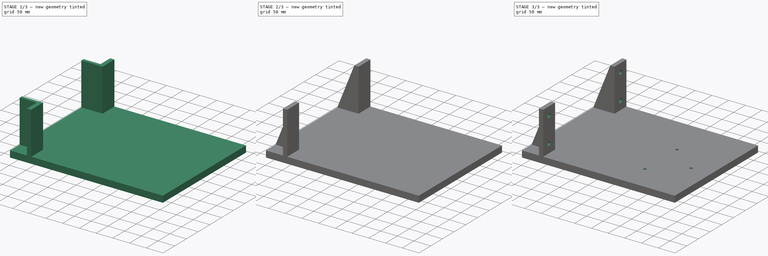
[diagram: build sequence overview — one tinted view per stage of 3, left to right]
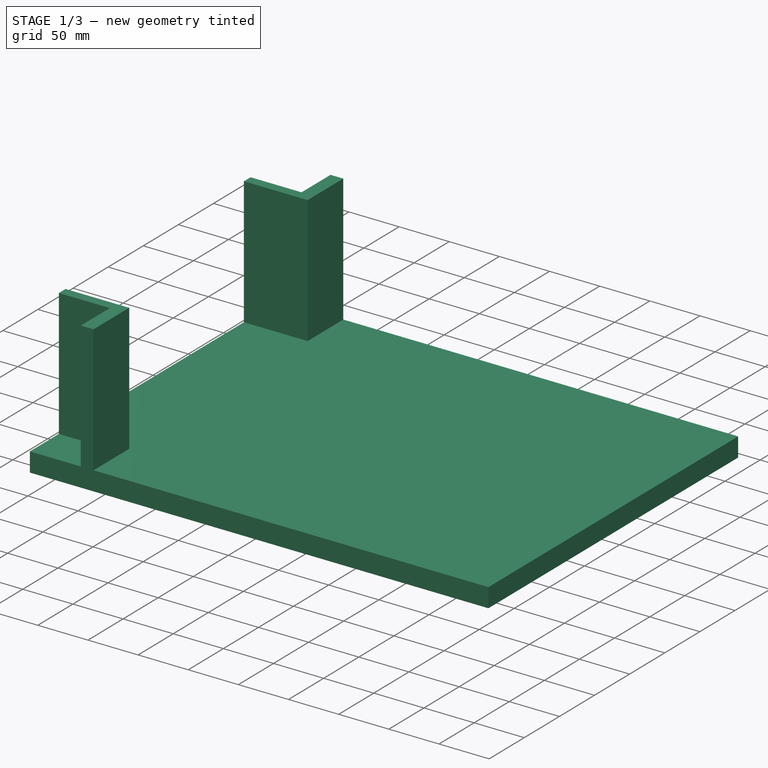
[diagram: stage 1 of 3 — iso view after this stage's code; geometry added in this stage tinted green]
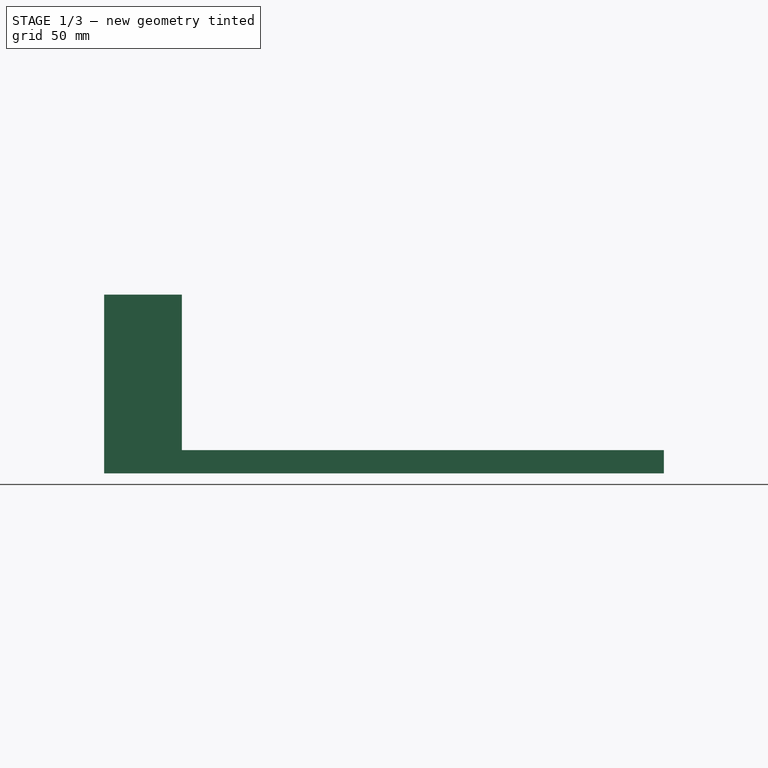
[diagram: stage 1 of 3 — front view after this stage's code; geometry added in this stage tinted green]
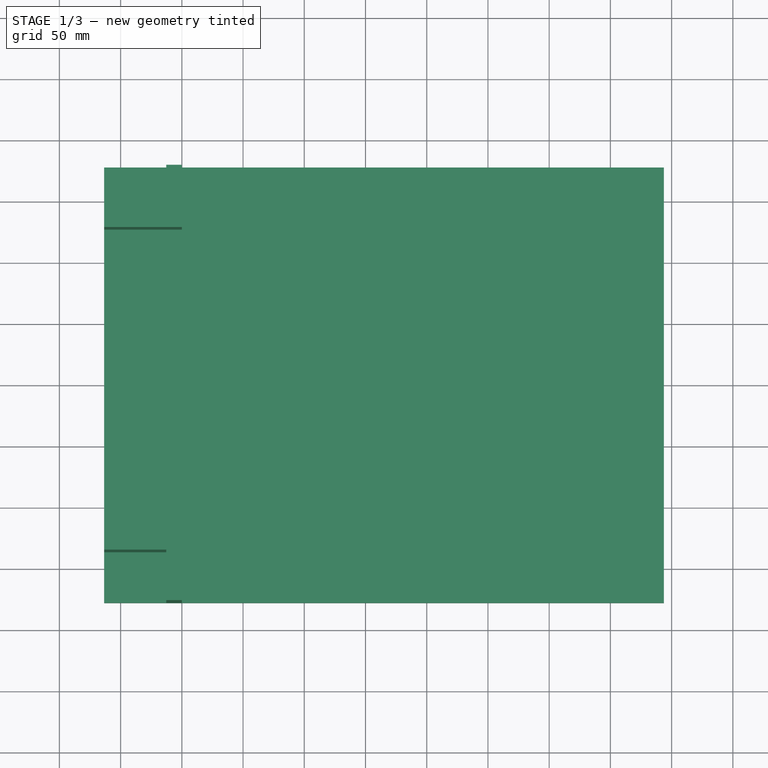
[diagram: stage 1 of 3 — top view after this stage's code; geometry added in this stage tinted green]
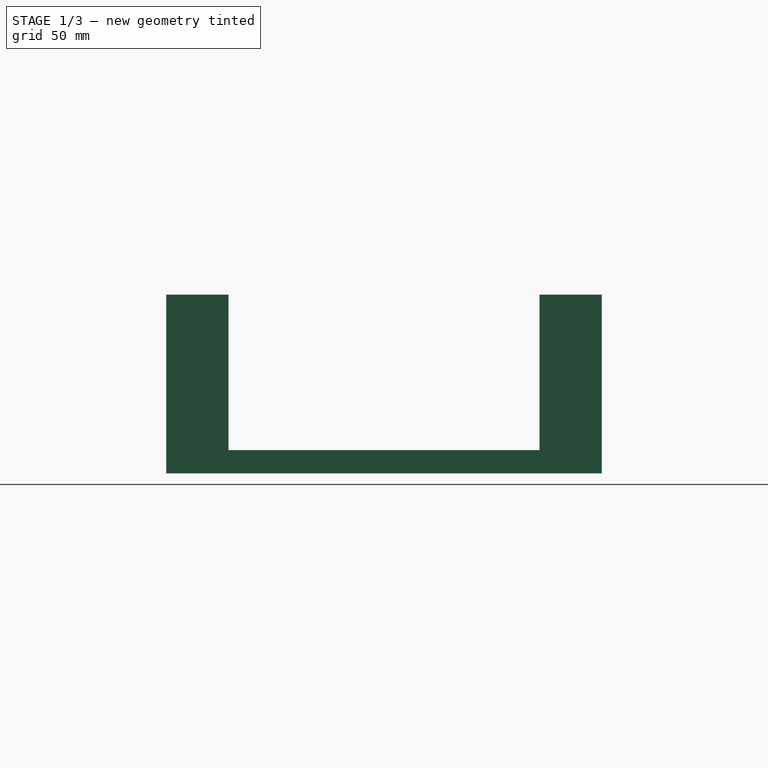
[diagram: stage 1 of 3 — right view after this stage's code; geometry added in this stage tinted green]
FCSTD DOCUMENT  (FreeCAD 0.19R23578 (Git))
Label: base_plate
License: All rights reserved
LicenseURL: http://en.wikipedia.org/wiki/All_rights_reserved
objects: Sketcher::SketchObject×5, PartDesign::Pocket×3, PartDesign::Pad×2, PartDesign::CoordinateSystem×2, PartDesign::Body×1, App::Part×1
note: 18 computed .brp shape members not serialized (recipe doc carries the construction recipe); baked Part::Feature solids carry a one-line shape summary decoded from their .brp

FEATURE [Sketcher::SketchObject] Sketch018
  MapMode = 5
  Support = -> [XY_Plane021]
  sketch-geometry (4):
    g0: LineSegment StartX=-63.5 StartY=177.8 StartZ=0 EndX=393.7 EndY=177.8 EndZ=0
    g1: LineSegment StartX=393.7 StartY=177.8 StartZ=0 EndX=393.7 EndY=-177.8 EndZ=0
    g2: LineSegment StartX=393.7 StartY=-177.8 StartZ=0 EndX=-63.5 EndY=-177.8 EndZ=0
    g3: LineSegment StartX=-63.5 StartY=-177.8 StartZ=0 EndX=-63.5 EndY=177.8 EndZ=0
  constraints (11):
    c: Coincident(g0,g1)
    c: Coincident(g1,g2)
    c: Coincident(g2,g3)
    c: Coincident(g3,g0)
    c: Horizontal(g0)
    c: Horizontal(g2)
    c: Vertical(g1)
    c: DistanceY(g-1,g0) = 177.8
    c: DistanceX(g0,g0) = 457.2
    c: DistanceX(g0,g-1) = 63.5
    c: Symmetric(g0,g2,g-1)
FEATURE [PartDesign::Pad] Pad008
  AllowMultiFace = false
  Direction = (1,1,1)
  Length = 19.05
  Length2 = 100
  Profile = -> Sketch018
  Reversed = true
  Type = 0
FEATURE [Sketcher::SketchObject] Sketch019
  MapMode = 5
  Support = -> [XY_Plane021]
  sketch-geometry (12):
    g0: LineSegment StartX=0 StartY=-127 StartZ=0 EndX=0 EndY=-177.8 EndZ=0
    g1: LineSegment StartX=0 StartY=-177.8 StartZ=0 EndX=-12.7 EndY=-177.8 EndZ=0
    g2: LineSegment StartX=-12.7 StartY=-177.8 StartZ=0 EndX=-12.7 EndY=-136.525 EndZ=0
    g3: LineSegment StartX=-63.5 StartY=-127 StartZ=0 EndX=-63.5 EndY=-136.525 EndZ=0
    g4: LineSegment StartX=-63.5 StartY=-136.525 StartZ=0 EndX=-12.7 EndY=-136.525 EndZ=0
    g5: LineSegment StartX=-63.5 StartY=-127 StartZ=0 EndX=0 EndY=-127 EndZ=0
    g6: LineSegment StartX=-12.7 StartY=136.525 StartZ=0 EndX=-63.5 EndY=136.525 EndZ=0
    g7: LineSegment StartX=-63.5 StartY=136.525 StartZ=0 EndX=-63.5 EndY=127 EndZ=0
    g8: LineSegment StartX=-63.5 StartY=127 StartZ=0 EndX=0 EndY=127 EndZ=0
    g9: LineSegment StartX=0 StartY=127 StartZ=0 EndX=0 EndY=177.8 EndZ=0
    g10: LineSegment StartX=0 StartY=177.8 StartZ=0 EndX=-12.7 EndY=177.8 EndZ=0
    g11: LineSegment StartX=-12.7 StartY=177.8 StartZ=0 EndX=-12.7 EndY=136.525 EndZ=0
  constraints (36):
    c: Coincident(g0,g1)
    c: Coincident(g1,g2)
    c: Horizontal(g1)
    c: Vertical(g0)
    c: Vertical(g2)
    c: Coincident(g3,g4)
    c: Horizontal(g4)
    c: Vertical(g3)
    c: Coincident(g2,g4)
    c: Coincident(g5,g3)
    c: Coincident(g5,g0)
    c: Horizontal(g5)
    c: DistanceY(g0,g-1) = 177.8
    c: DistanceX(g5,g5) = 63.5
    c: DistanceY(g3,g3) = 9.525
    c: PointOnObject(g0,g-2)
    c: DistanceY(g0,g0) = 50.8
    c: DistanceX(g1,g1) = 12.7
    c: Horizontal(g6)
    c: Coincident(g6,g7)
    c: Coincident(g7,g8)
    c: Coincident(g8,g9)
    c: Coincident(g9,g10)
    c: Coincident(g10,g11)
    c: Coincident(g11,g6)
    c: Vertical(g11)
    c: Vertical(g9)
    c: Vertical(g7)
    c: Horizontal(g10)
    c: Horizontal(g8)
    c: PointOnObject(g8,g-2)
    c: DistanceX(g10,g10) = 12.7
    c: DistanceX(g8,g8) = 63.5
    c: DistanceY(g9,g9) = 50.8
    c: DistanceY(g7,g7) = 9.525
    c: DistanceY(g-1,g9) = 177.8
FEATURE [PartDesign::Pad] Pad009
  AllowMultiFace = false
  BaseFeature = -> Pad008
  Direction = (1,1,1)
  Length = 127
  Length2 = 100
  Profile = -> Sketch019
  Type = 0
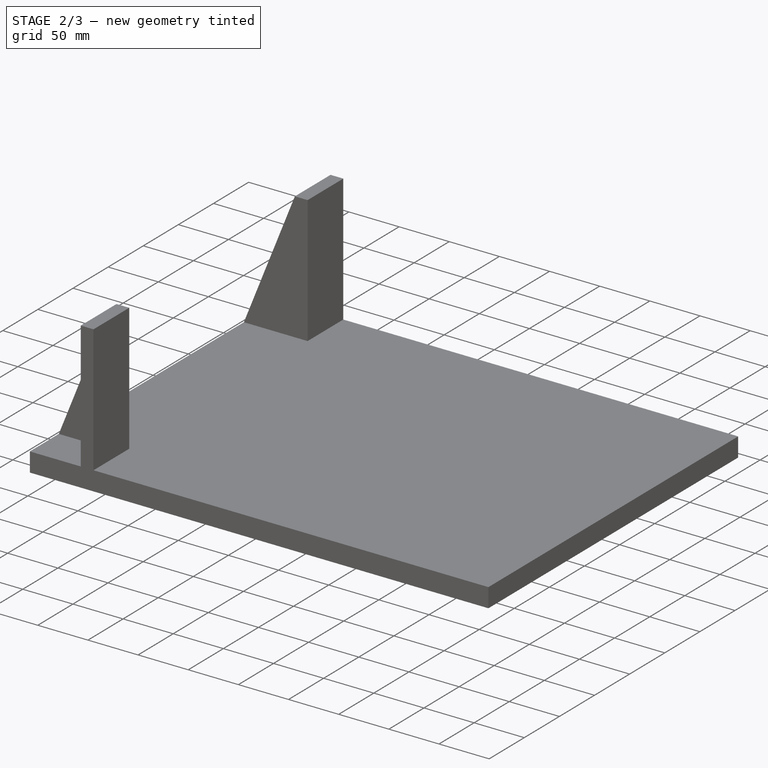
[diagram: stage 2 of 3 — iso view after this stage's code; geometry added in this stage tinted green]
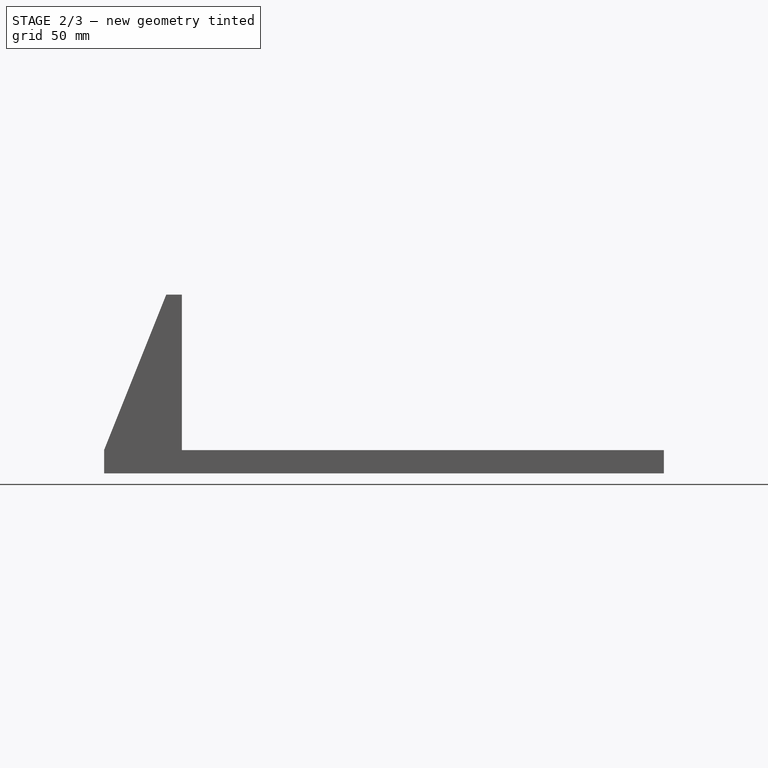
[diagram: stage 2 of 3 — front view after this stage's code; geometry added in this stage tinted green]
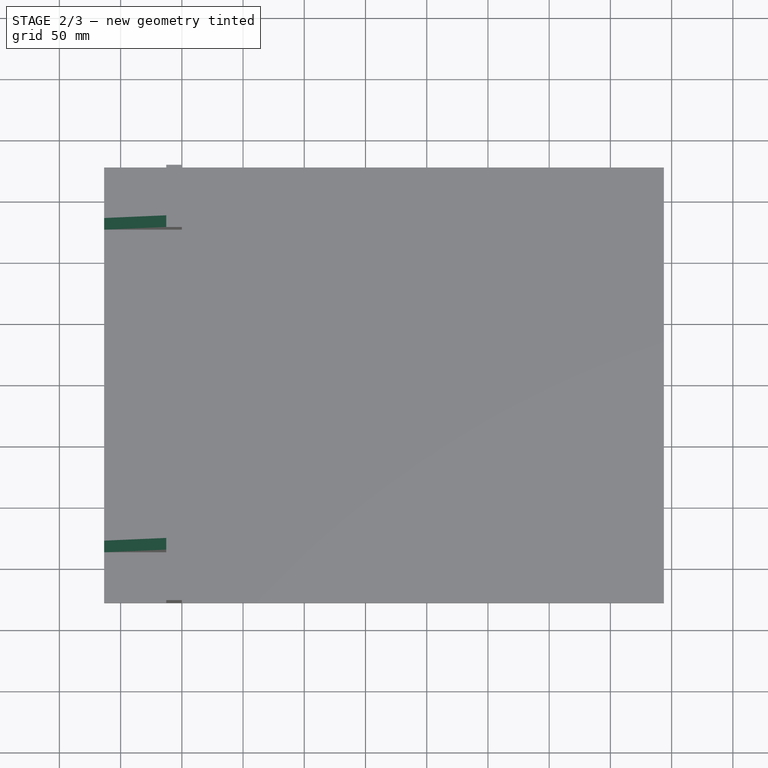
[diagram: stage 2 of 3 — top view after this stage's code; geometry added in this stage tinted green]
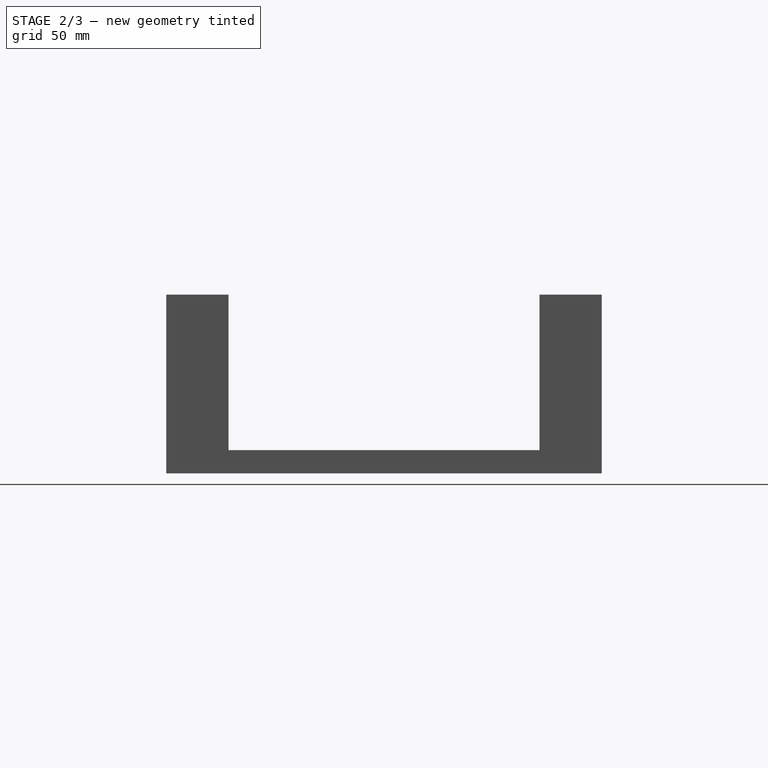
[diagram: stage 2 of 3 — right view after this stage's code; geometry added in this stage tinted green]
FEATURE [Sketcher::SketchObject] Sketch020
  MapMode = 5
  Placement = pos=(0,0,0) rot=(1,0,0;1.5708rad)
  Support = -> [XZ_Plane021]
  sketch-geometry (3):
    g0: LineSegment StartX=-63.5 StartY=0 StartZ=0 EndX=-12.7 EndY=127 EndZ=0
    g1: LineSegment StartX=-12.7 StartY=127 StartZ=0 EndX=-63.5 EndY=127 EndZ=0
    g2: LineSegment StartX=-63.5 StartY=127 StartZ=0 EndX=-63.5 EndY=0 EndZ=0
  constraints (9):
    c: Coincident(g0,g1)
    c: Horizontal(g1)
    c: Coincident(g1,g2)
    c: Coincident(g2,g0)
    c: Vertical(g2)
    c: PointOnObject(g0,g-1)
    c: DistanceY(g2,g2) = 127
    c: DistanceX(g0,g-1) = 12.7
    c: DistanceX(g0,g-1) = 63.5
FEATURE [PartDesign::Pocket] Pocket010
  AllowMultiFace = false
  BaseFeature = -> Pad009
  Length = 5
  Length2 = 100
  Midplane = true
  Profile = -> Sketch020
  Type = 1
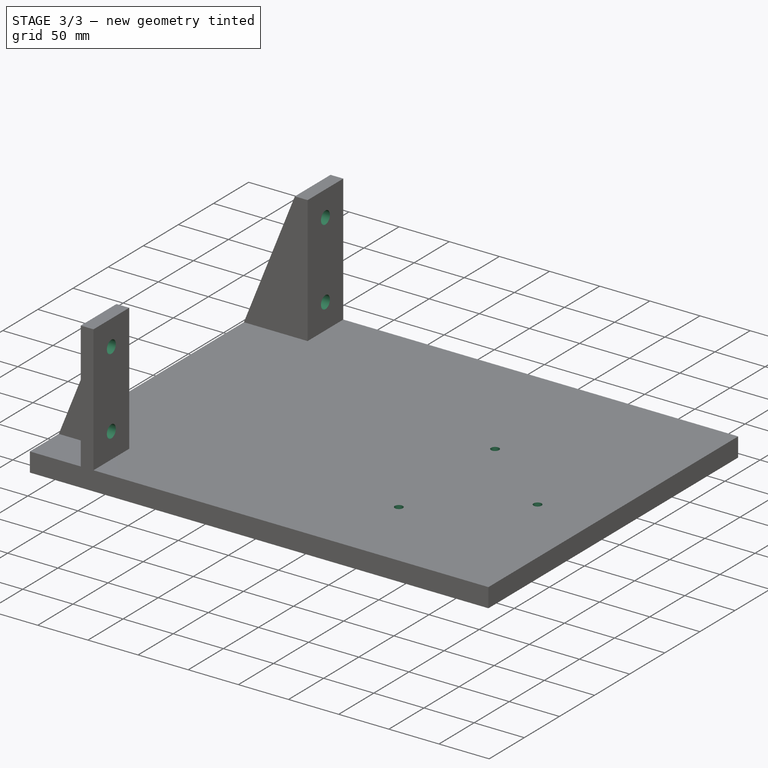
[diagram: stage 3 of 3 — iso view after this stage's code; geometry added in this stage tinted green]
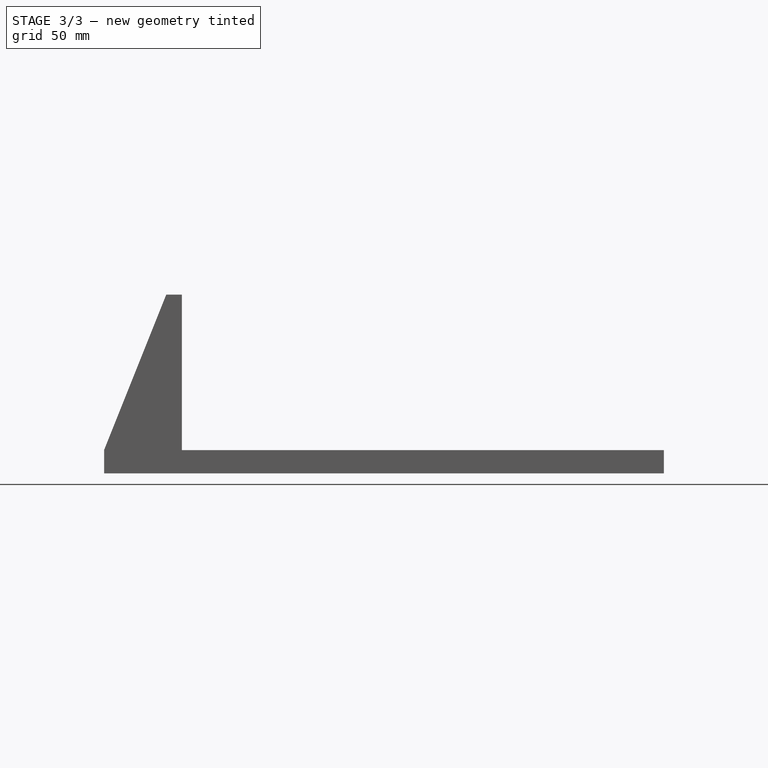
[diagram: stage 3 of 3 — front view after this stage's code; geometry added in this stage tinted green]
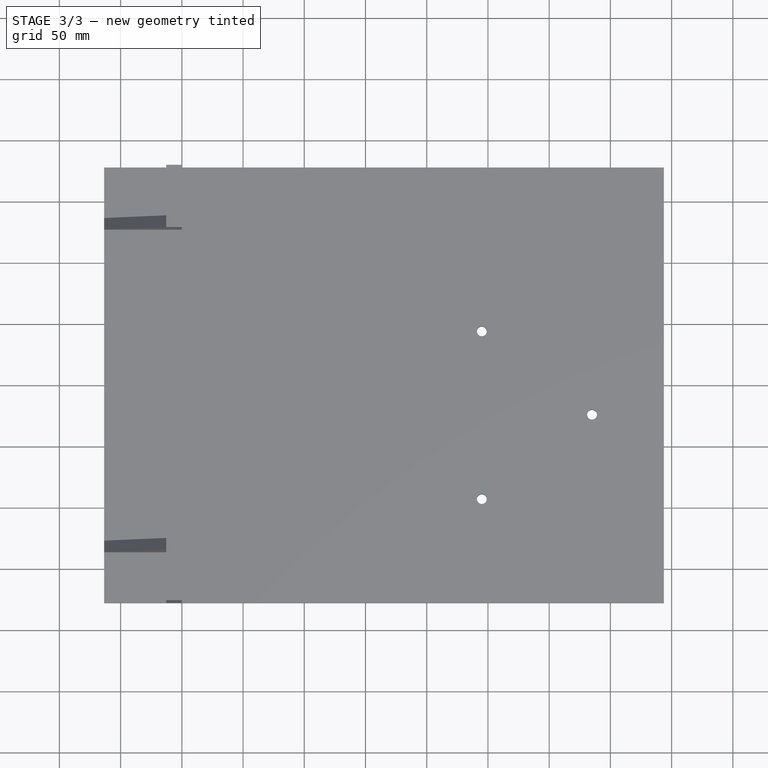
[diagram: stage 3 of 3 — top view after this stage's code; geometry added in this stage tinted green]
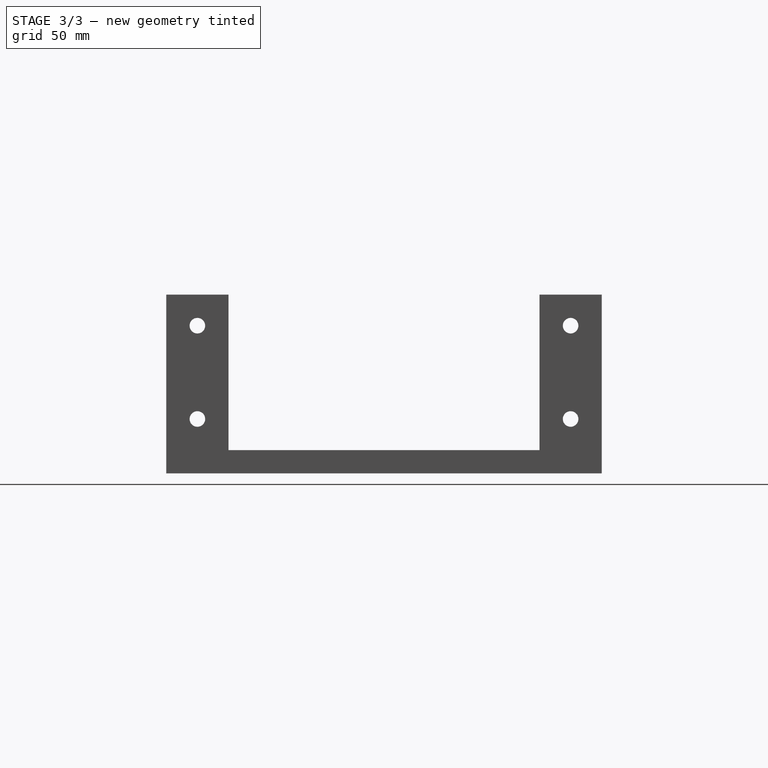
[diagram: stage 3 of 3 — right view after this stage's code; geometry added in this stage tinted green]
FEATURE [Sketcher::SketchObject] Sketch021
  MapMode = 5
  Placement = pos=(0,0,0) rot=(0.57735,0.57735,0.57735;2.0944rad)
  Support = -> [YZ_Plane021]
  sketch-geometry (4):
    g0: Circle CenterX=-152.4 CenterY=101.6 CenterZ=0 NormalX=0 NormalY=0 NormalZ=1 AngleXU=0 Radius=6.35
    g1: Circle CenterX=-152.4 CenterY=25.4 CenterZ=0 NormalX=0 NormalY=0 NormalZ=1 AngleXU=0 Radius=6.35
    g2: Circle CenterX=152.4 CenterY=101.6 CenterZ=0 NormalX=0 NormalY=0 NormalZ=1 AngleXU=0 Radius=6.35
    g3: Circle CenterX=152.4 CenterY=25.4 CenterZ=0 NormalX=0 NormalY=0 NormalZ=1 AngleXU=0 Radius=6.35
  constraints (10):
    c: Symmetric(g1,g3,g-2)
    c: Symmetric(g0,g2,g-2)
    c: DistanceX(g0,g-1) = 152.4
    c: Vertical(g0,g1)
    c: Diameter(g0) = 12.7
    c: Equal(g0,g1)
    c: Equal(g1,g3)
    c: Equal(g3,g2)
    c: DistanceY(g-1,g0) = 101.6
    c: DistanceY(g-1,g1) = 25.4
FEATURE [PartDesign::Pocket] Pocket009
  AllowMultiFace = false
  BaseFeature = -> Pocket010
  Length = 5
  Length2 = 100
  Profile = -> Sketch021
  Type = 1
FEATURE [Sketcher::SketchObject] Sketch095
  MapMode = 5
  Support = -> [XY_Plane021]
  sketch-geometry (3):
    g0: Circle CenterX=245 CenterY=44 CenterZ=0 NormalX=0 NormalY=0 NormalZ=1 AngleXU=0 Radius=4
    g1: Circle CenterX=335 CenterY=-24 CenterZ=0 NormalX=0 NormalY=0 NormalZ=1 AngleXU=0 Radius=4
    g2: Circle CenterX=245 CenterY=-93 CenterZ=0 NormalX=0 NormalY=0 NormalZ=1 AngleXU=0 Radius=4
  constraints (9):
    c: Equal(g2,g0)
    c: Equal(g0,g1)
    c: Diameter(g1) = 8
    c: Vertical(g2,g0)
    c: DistanceY(g-1,g0) = 44
    c: DistanceX(g-1,g0) = 245
    c: DistanceY(g2,g-1) = 93
    c: DistanceX(g-1,g1) = 335
    c: DistanceY(g1,g-1) = 24
FEATURE [PartDesign::Pocket] Pocket
  BaseFeature = -> Pocket009
  Length = 5
  Length2 = 100
  Midplane = true
  Profile = -> Sketch095
  Type = 1
FEATURE [PartDesign::Body] Body008  label="Body"
  Group = -> [Sketch018,Pad008,Sketch019,Pad009,Sketch020,Pocket010,Sketch021,Pocket009,Sketch095,Pocket]
  Origin = -> Origin021
  Tip = -> Pocket
FEATURE [PartDesign::CoordinateSystem] LCS_1
  AttacherType = Attacher::AttachEngine3D
  AttachmentOffset = pos=(-25.4,0,0) rot=(0,0,1;0rad)
  MapMode = 45
  Placement = pos=(25.4,0,0) rot=(0,0.707107,0.707107;3.14159rad)
  Support = -> [Pocket]
FEATURE [PartDesign::CoordinateSystem] LCS_2
  AttacherType = Attacher::AttachEngine3D
  MapMode = 45
  Placement = pos=(164.998,0.0225906,-19.05) rot=(0,0,1;1.57116rad)
  Support = -> [Pocket]
FEATURE [App::Part] Part014  label="base_plate"
  Group = -> [Body008,LCS_1,LCS_2]
  Origin = -> Origin020
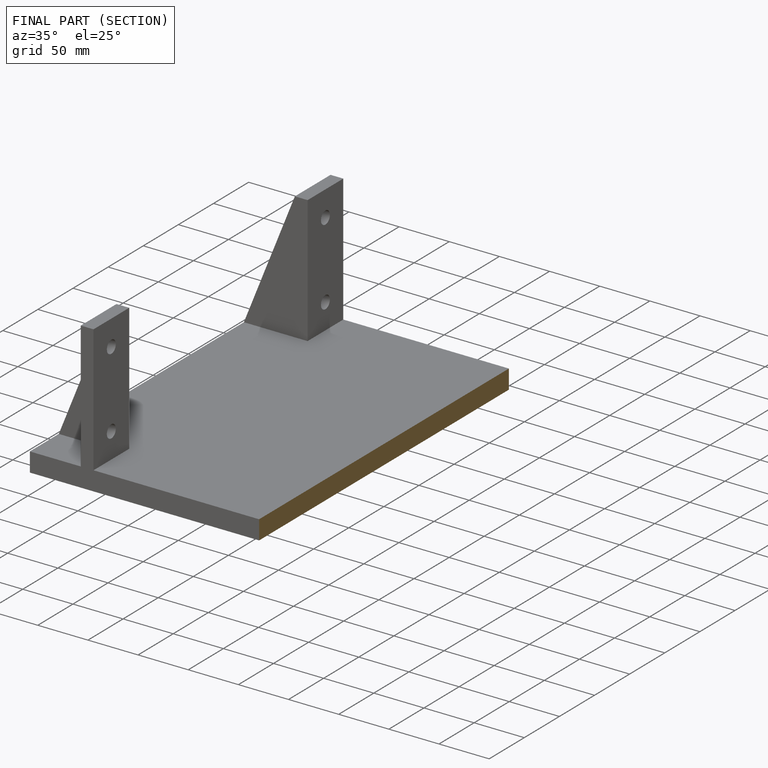
[diagram: finished part — half-section view (interior)]
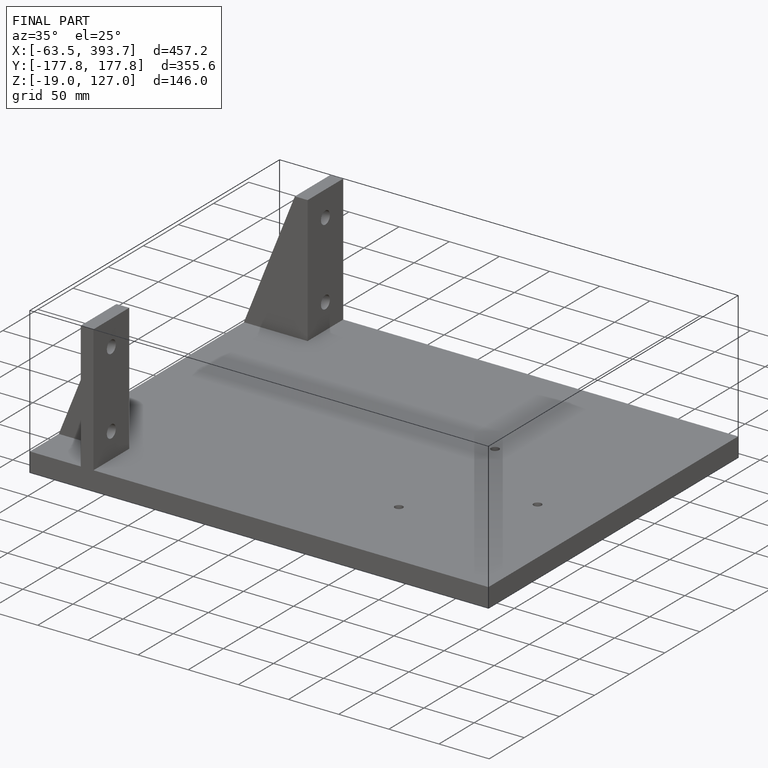
[diagram: finished part — iso view with bounding-box wireframe]
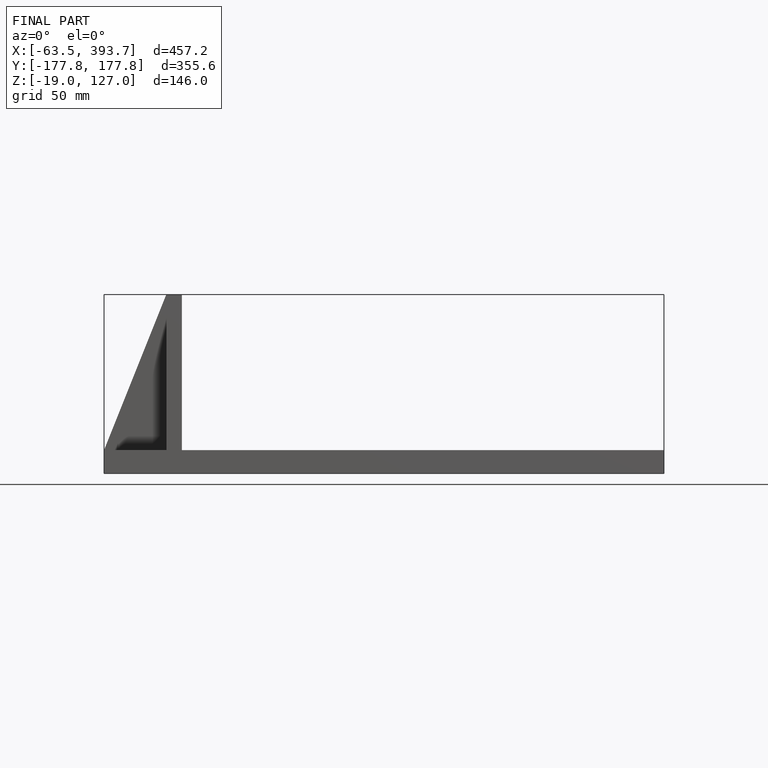
[diagram: finished part — front view with bounding-box wireframe]
